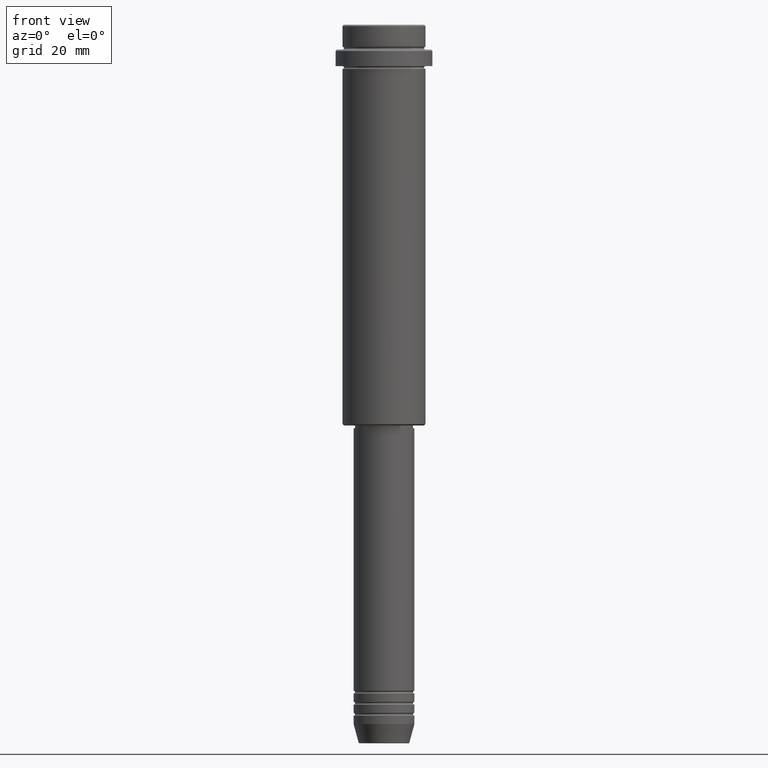
[diagram: clean part render]
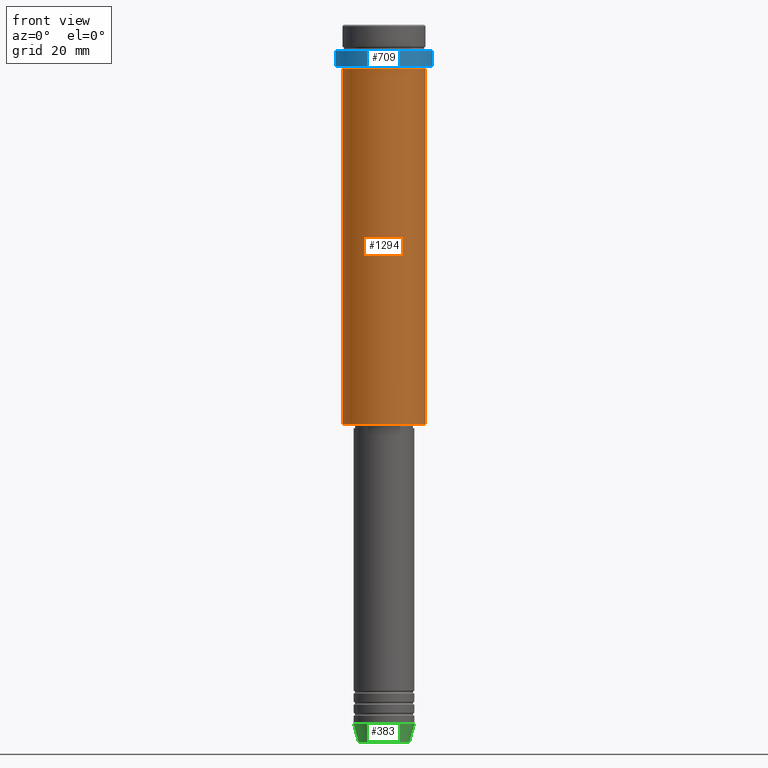
[diagram: same view with three faces highlighted in distinct colors, each labeled with its STEP entity id]
A machine part, front view with three faces highlighted in distinct colors.
Their STEP definitions:

[orange] entity #1294 — the highlighted cylindrical surface (partial cylindrical patch) has radius 15 mm, axis along (-0, -0, 1).
#13 = ORIENTED_EDGE ( 'NONE', *, *, #1363, .T. ) ;
#17 = CARTESIAN_POINT ( 'NONE',  ( -15.00000000000000355, 1.836970198721029983E-15, -16.00000000000000000 ) ) ;
#36 = DIRECTION ( 'NONE',  ( 1.000000000000000000, 0.000000000000000000, 0.000000000000000000 ) ) ;
#43 = LINE ( 'NONE', #888, #1320 ) ;
#62 = VERTEX_POINT ( 'NONE', #17 ) ;
#82 = LINE ( 'NONE', #1385, #1046 ) ;
#101 = VERTEX_POINT ( 'NONE', #691 ) ;
#143 = EDGE_CURVE ( 'NONE', #62, #276, #236, .T. ) ;
#163 = CYLINDRICAL_SURFACE ( 'NONE', #336, 15.00000000000000000 ) ;
#200 = ORIENTED_EDGE ( 'NONE', *, *, #360, .F. ) ;
#236 = CIRCLE ( 'NONE', #940, 15.00000000000000178 ) ;
#244 = EDGE_LOOP ( 'NONE', ( #200, #1314, #13, #531 ) ) ;
#250 = DIRECTION ( 'NONE',  ( -0.000000000000000000, -0.000000000000000000, 1.000000000000000000 ) ) ;
#251 = DIRECTION ( 'NONE',  ( -0.000000000000000000, -0.000000000000000000, 1.000000000000000000 ) ) ;
#276 = VERTEX_POINT ( 'NONE', #950 ) ;
#336 = AXIS2_PLACEMENT_3D ( 'NONE', #919, #816, #1365 ) ;
#360 = EDGE_CURVE ( 'NONE', #596, #62, #43, .T. ) ;
#369 = FACE_OUTER_BOUND ( 'NONE', #244, .T. ) ;
#399 = DIRECTION ( 'NONE',  ( -1.000000000000000000, 0.000000000000000000, 0.000000000000000000 ) ) ;
#447 = EDGE_CURVE ( 'NONE', #596, #101, #1011, .T. ) ;
#531 = ORIENTED_EDGE ( 'NONE', *, *, #143, .F. ) ;
#596 = VERTEX_POINT ( 'NONE', #759 ) ;
#691 = CARTESIAN_POINT ( 'NONE',  ( 15.00000000000000000, 0.000000000000000000, -144.5000000000000284 ) ) ;
#733 = DIRECTION ( 'NONE',  ( -0.000000000000000000, -0.000000000000000000, 1.000000000000000000 ) ) ;
#759 = CARTESIAN_POINT ( 'NONE',  ( -15.00000000000000000, 1.836970198721029589E-15, -144.5000000000000284 ) ) ;
#816 = DIRECTION ( 'NONE',  ( -0.000000000000000000, -0.000000000000000000, 1.000000000000000000 ) ) ;
#888 = CARTESIAN_POINT ( 'NONE',  ( -15.00000000000000000, 1.836970198721029589E-15, 0.000000000000000000 ) ) ;
#919 = CARTESIAN_POINT ( 'NONE',  ( 0.000000000000000000, 0.000000000000000000, 0.000000000000000000 ) ) ;
#940 = AXIS2_PLACEMENT_3D ( 'NONE', #1220, #250, #36 ) ;
#950 = CARTESIAN_POINT ( 'NONE',  ( 15.00000000000000178, 0.000000000000000000, -16.00000000000000000 ) ) ;
#1011 = CIRCLE ( 'NONE', #1208, 15.00000000000000000 ) ;
#1046 = VECTOR ( 'NONE', #1268, 1000.000000000000000 ) ;
#1208 = AXIS2_PLACEMENT_3D ( 'NONE', #1374, #733, #399 ) ;
#1220 = CARTESIAN_POINT ( 'NONE',  ( 0.000000000000000000, 0.000000000000000000, -16.00000000000000000 ) ) ;
#1268 = DIRECTION ( 'NONE',  ( -0.000000000000000000, -0.000000000000000000, 1.000000000000000000 ) ) ;
#1294 = ADVANCED_FACE ( 'NONE', ( #369 ), #163, .T. ) ;
#1314 = ORIENTED_EDGE ( 'NONE', *, *, #447, .T. ) ;
#1320 = VECTOR ( 'NONE', #251, 1000.000000000000000 ) ;
#1363 = EDGE_CURVE ( 'NONE', #101, #276, #82, .T. ) ;
#1365 = DIRECTION ( 'NONE',  ( 1.000000000000000000, 0.000000000000000000, 0.000000000000000000 ) ) ;
#1374 = CARTESIAN_POINT ( 'NONE',  ( 0.000000000000000000, 0.000000000000000000, -144.5000000000000284 ) ) ;
#1385 = CARTESIAN_POINT ( 'NONE',  ( 15.00000000000000000, 0.000000000000000000, 0.000000000000000000 ) ) ;

[blue] entity #709 — the highlighted cylindrical surface (partial cylindrical patch) has radius 17.5 mm, axis along (-0, -0, 1).
#6 = DIRECTION ( 'NONE',  ( 1.000000000000000000, 0.000000000000000000, 0.000000000000000000 ) ) ;
#26 = CIRCLE ( 'NONE', #482, 17.50000000000000000 ) ;
#57 = CARTESIAN_POINT ( 'NONE',  ( 17.50000000000000000, 0.000000000000000000, -15.00000000000000178 ) ) ;
#69 = VERTEX_POINT ( 'NONE', #680 ) ;
#80 = DIRECTION ( 'NONE',  ( -0.000000000000000000, -0.000000000000000000, 1.000000000000000000 ) ) ;
#87 = CARTESIAN_POINT ( 'NONE',  ( 0.000000000000000000, 0.000000000000000000, -15.00000000000000178 ) ) ;
#120 = VERTEX_POINT ( 'NONE', #1154 ) ;
#152 = ORIENTED_EDGE ( 'NONE', *, *, #545, .T. ) ;
#160 = EDGE_CURVE ( 'NONE', #120, #69, #539, .T. ) ;
#222 = VECTOR ( 'NONE', #1155, 1000.000000000000000 ) ;
#290 = DIRECTION ( 'NONE',  ( 1.000000000000000000, 0.000000000000000000, 0.000000000000000000 ) ) ;
#319 = DIRECTION ( 'NONE',  ( 1.000000000000000000, 0.000000000000000000, 0.000000000000000000 ) ) ;
#337 = DIRECTION ( 'NONE',  ( -0.000000000000000000, -0.000000000000000000, 1.000000000000000000 ) ) ;
#355 = ORIENTED_EDGE ( 'NONE', *, *, #891, .T. ) ;
#437 = CIRCLE ( 'NONE', #558, 17.50000000000000000 ) ;
#482 = AXIS2_PLACEMENT_3D ( 'NONE', #87, #80, #290 ) ;
#539 = LINE ( 'NONE', #660, #1415 ) ;
#545 = EDGE_CURVE ( 'NONE', #120, #1232, #26, .T. ) ;
#547 = DIRECTION ( 'NONE',  ( -0.000000000000000000, -0.000000000000000000, 1.000000000000000000 ) ) ;
#558 = AXIS2_PLACEMENT_3D ( 'NONE', #1174, #1043, #319 ) ;
#577 = EDGE_LOOP ( 'NONE', ( #979, #152, #1175, #355 ) ) ;
#660 = CARTESIAN_POINT ( 'NONE',  ( -17.50000000000000000, 2.143131898507868248E-15, 0.000000000000000000 ) ) ;
#680 = CARTESIAN_POINT ( 'NONE',  ( -17.50000000000000000, 2.143131898507868248E-15, -9.500000000000001776 ) ) ;
#709 = ADVANCED_FACE ( 'NONE', ( #1413 ), #864, .T. ) ;
#825 = CARTESIAN_POINT ( 'NONE',  ( 17.50000000000000000, 0.000000000000000000, -9.500000000000001776 ) ) ;
#864 = CYLINDRICAL_SURFACE ( 'NONE', #1321, 17.50000000000000000 ) ;
#891 = EDGE_CURVE ( 'NONE', #1347, #69, #437, .T. ) ;
#969 = CARTESIAN_POINT ( 'NONE',  ( 0.000000000000000000, 0.000000000000000000, 0.000000000000000000 ) ) ;
#979 = ORIENTED_EDGE ( 'NONE', *, *, #160, .F. ) ;
#1043 = DIRECTION ( 'NONE',  ( 0.000000000000000000, 0.000000000000000000, -1.000000000000000000 ) ) ;
#1154 = CARTESIAN_POINT ( 'NONE',  ( -17.50000000000000000, 2.143131898507868248E-15, -15.00000000000000178 ) ) ;
#1155 = DIRECTION ( 'NONE',  ( -0.000000000000000000, -0.000000000000000000, 1.000000000000000000 ) ) ;
#1163 = CARTESIAN_POINT ( 'NONE',  ( 17.50000000000000000, 0.000000000000000000, 0.000000000000000000 ) ) ;
#1171 = LINE ( 'NONE', #1163, #222 ) ;
#1174 = CARTESIAN_POINT ( 'NONE',  ( 0.000000000000000000, 0.000000000000000000, -9.500000000000001776 ) ) ;
#1175 = ORIENTED_EDGE ( 'NONE', *, *, #1358, .T. ) ;
#1232 = VERTEX_POINT ( 'NONE', #57 ) ;
#1321 = AXIS2_PLACEMENT_3D ( 'NONE', #969, #337, #6 ) ;
#1347 = VERTEX_POINT ( 'NONE', #825 ) ;
#1358 = EDGE_CURVE ( 'NONE', #1232, #1347, #1171, .T. ) ;
#1413 = FACE_OUTER_BOUND ( 'NONE', #577, .T. ) ;
#1415 = VECTOR ( 'NONE', #547, 1000.000000000000000 ) ;

[green] entity #383 — the highlighted conical surface has half-angle 15 deg.
#14 = CARTESIAN_POINT ( 'NONE',  ( 0.000000000000000000, 0.000000000000000000, -253.0000000000000000 ) ) ;
#51 = CARTESIAN_POINT ( 'NONE',  ( 0.000000000000000000, 0.000000000000000000, -253.0000000000000000 ) ) ;
#58 = CARTESIAN_POINT ( 'NONE',  ( 11.00000000000000000, 0.000000000000000000, -253.0000000000000000 ) ) ;
#90 = VECTOR ( 'NONE', #554, 1000.000000000000000 ) ;
#105 = CARTESIAN_POINT ( 'NONE',  ( 9.223655072137189492, 0.000000000000000000, -259.6294095225512706 ) ) ;
#208 = EDGE_CURVE ( 'NONE', #1071, #792, #826, .T. ) ;
#213 = ORIENTED_EDGE ( 'NONE', *, *, #466, .T. ) ;
#221 = EDGE_CURVE ( 'NONE', #1327, #758, #1102, .T. ) ;
#254 = ORIENTED_EDGE ( 'NONE', *, *, #208, .T. ) ;
#258 = DIRECTION ( 'NONE',  ( 1.000000000000000000, 0.000000000000000000, 0.000000000000000000 ) ) ;
#273 = FACE_OUTER_BOUND ( 'NONE', #535, .T. ) ;
#287 = ORIENTED_EDGE ( 'NONE', *, *, #221, .F. ) ;
#305 = DIRECTION ( 'NONE',  ( -0.000000000000000000, -0.000000000000000000, 1.000000000000000000 ) ) ;
#346 = CONICAL_SURFACE ( 'NONE', #671, 11.00000000000000000, 0.2617993877991500740 ) ;
#383 = ADVANCED_FACE ( 'NONE', ( #273 ), #346, .T. ) ;
#466 = EDGE_CURVE ( 'NONE', #1327, #1071, #1391, .T. ) ;
#535 = EDGE_LOOP ( 'NONE', ( #287, #213, #254, #1045 ) ) ;
#554 = DIRECTION ( 'NONE',  ( 0.2588190451025213501, 0.000000000000000000, 0.9659258262890680902 ) ) ;
#642 = EDGE_CURVE ( 'NONE', #758, #792, #1133, .T. ) ;
#659 = DIRECTION ( 'NONE',  ( -0.2588190451025213501, 3.169619151431772337E-17, 0.9659258262890680902 ) ) ;
#661 = DIRECTION ( 'NONE',  ( -0.000000000000000000, -0.000000000000000000, 1.000000000000000000 ) ) ;
#671 = AXIS2_PLACEMENT_3D ( 'NONE', #51, #1335, #258 ) ;
#741 = CARTESIAN_POINT ( 'NONE',  ( -9.223655072137189492, 1.238341722557647202E-15, -259.6294095225512706 ) ) ;
#752 = DIRECTION ( 'NONE',  ( 1.000000000000000000, 0.000000000000000000, 0.000000000000000000 ) ) ;
#758 = VERTEX_POINT ( 'NONE', #895 ) ;
#792 = VERTEX_POINT ( 'NONE', #58 ) ;
#826 = LINE ( 'NONE', #1353, #90 ) ;
#854 = CARTESIAN_POINT ( 'NONE',  ( -11.00000000000000000, 1.347111479062088405E-15, -253.0000000000000000 ) ) ;
#895 = CARTESIAN_POINT ( 'NONE',  ( -11.00000000000000000, 1.347111479062088405E-15, -253.0000000000000000 ) ) ;
#1012 = AXIS2_PLACEMENT_3D ( 'NONE', #14, #661, #752 ) ;
#1045 = ORIENTED_EDGE ( 'NONE', *, *, #642, .F. ) ;
#1071 = VERTEX_POINT ( 'NONE', #105 ) ;
#1102 = LINE ( 'NONE', #854, #1276 ) ;
#1132 = AXIS2_PLACEMENT_3D ( 'NONE', #1169, #305, #1392 ) ;
#1133 = CIRCLE ( 'NONE', #1012, 11.00000000000000000 ) ;
#1169 = CARTESIAN_POINT ( 'NONE',  ( 0.000000000000000000, 0.000000000000000000, -259.6294095225512706 ) ) ;
#1276 = VECTOR ( 'NONE', #659, 1000.000000000000000 ) ;
#1327 = VERTEX_POINT ( 'NONE', #741 ) ;
#1335 = DIRECTION ( 'NONE',  ( -0.000000000000000000, -0.000000000000000000, 1.000000000000000000 ) ) ;
#1353 = CARTESIAN_POINT ( 'NONE',  ( 11.00000000000000000, 0.000000000000000000, -253.0000000000000000 ) ) ;
#1391 = CIRCLE ( 'NONE', #1132, 9.223655072137189492 ) ;
#1392 = DIRECTION ( 'NONE',  ( 1.000000000000000000, 0.000000000000000000, 0.000000000000000000 ) ) ;